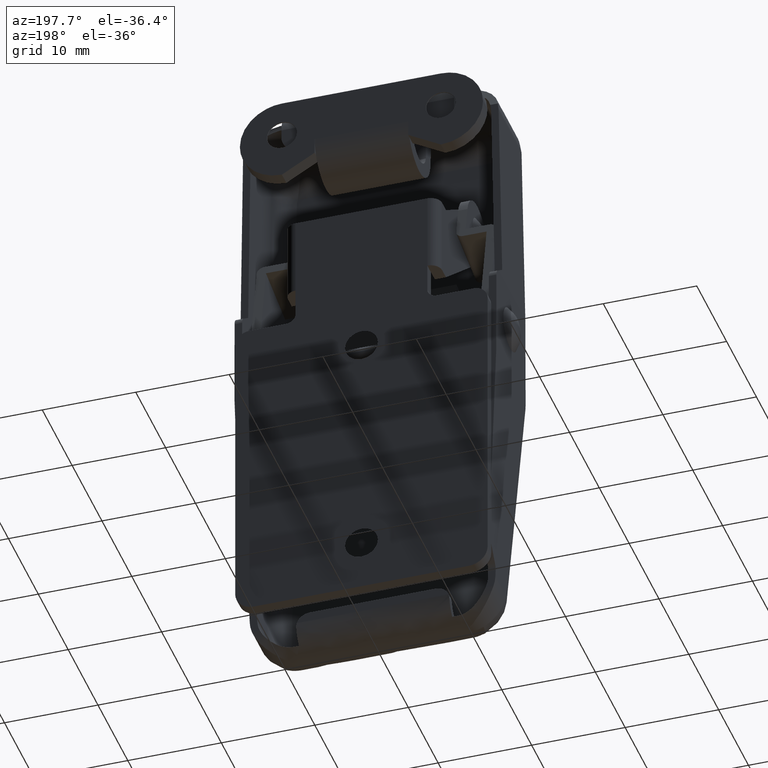
[diagram: clean part render]
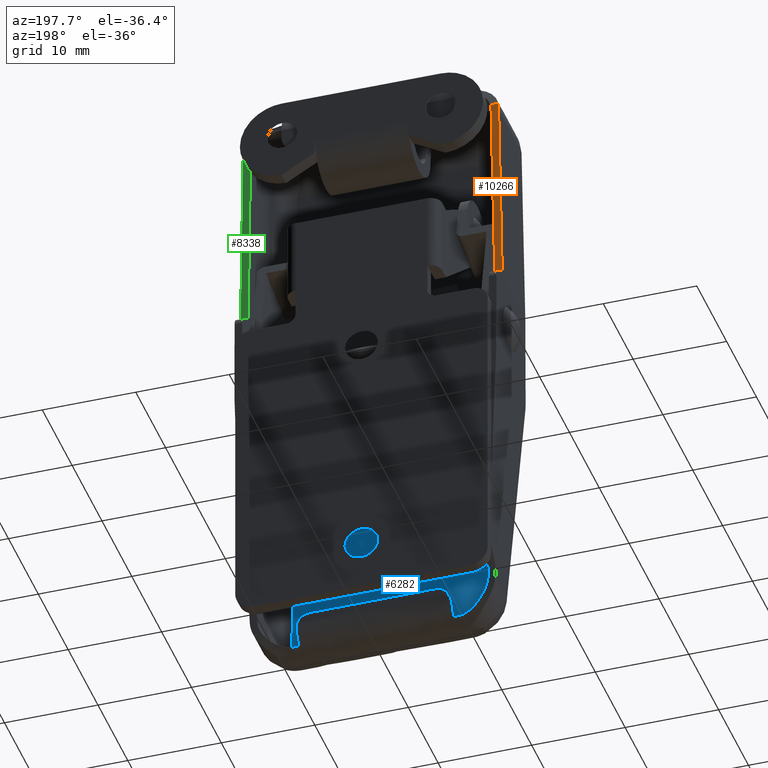
[diagram: same view with three faces highlighted in distinct colors, each labeled with its STEP entity id]
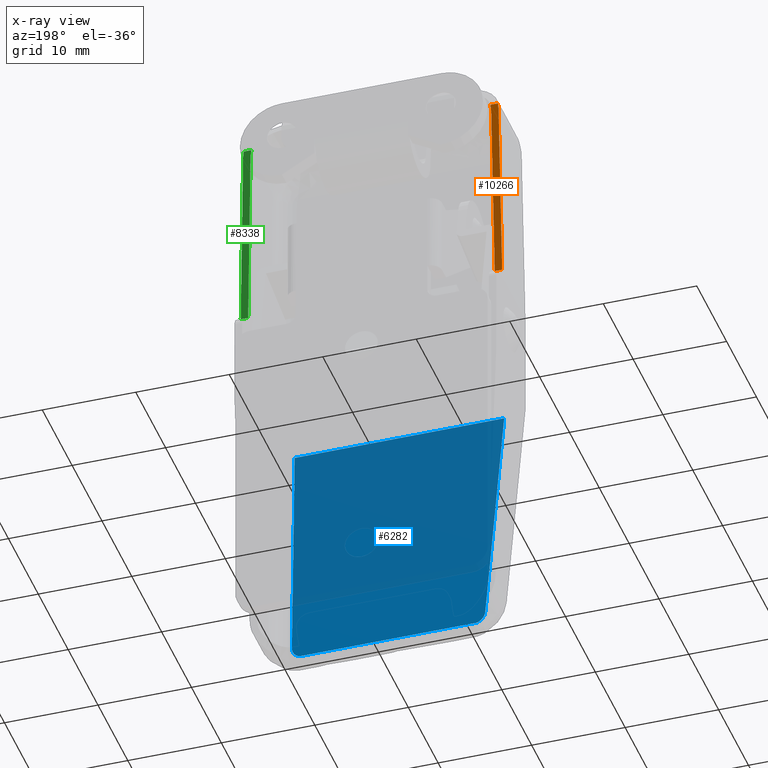
[diagram: x-ray of the same camera — body ghosted, the three highlighted faces saturated]
A machine part, auxiliary view with three faces highlighted in distinct colors.
The next image is the same camera in x-ray (body ghosted, the three faces saturated) — at least one of them is partly hidden behind the body in this view.
Their STEP definitions:

[orange] entity #10266 — the highlighted face is a freeform B-spline surface patch.
#8204=CARTESIAN_POINT('',(-13.984603545498860,2.359530509689675,10.951284338391190));
#8205=VERTEX_POINT('',#8204);
#8214=CARTESIAN_POINT('',(-13.665169160898101,2.561006097252625,31.218045558552909));
#8215=VERTEX_POINT('',#8214);
#8221=CARTESIAN_POINT('',(-13.984603545498860,2.359530509689675,10.951284338391190));
#8222=CARTESIAN_POINT('',(-13.665169160898101,2.561006097252625,31.218045558552909));
#8223=QUASI_UNIFORM_CURVE('',1,(#8221,#8222),.UNSPECIFIED.,.F.,.U.);
#8224=EDGE_CURVE('',#8205,#8215,#8223,.T.);
#8282=CARTESIAN_POINT('',(-13.184504181824041,2.359530509689730,10.951284338391160));
#8283=VERTEX_POINT('',#8282);
#8284=CARTESIAN_POINT('',(-13.984603545498860,2.359530509689675,10.951284338391190));
#8285=CARTESIAN_POINT('',(-13.184504181824041,2.359530509689730,10.951284338391160));
#8286=QUASI_UNIFORM_CURVE('',1,(#8284,#8285),.UNSPECIFIED.,.F.,.U.);
#8287=EDGE_CURVE('',#8205,#8283,#8286,.T.);
#9963=CARTESIAN_POINT('',(-12.865268492596620,2.560880774904560,31.205439177134611));
#9964=VERTEX_POINT('',#9963);
#9965=CARTESIAN_POINT('',(-12.773666100172600,2.568258832854665,31.947610179332159));
#9966=VERTEX_POINT('',#9965);
#9967=CARTESIAN_POINT('',(-12.865268492596620,2.560880774904560,31.205439177134611));
#9968=CARTESIAN_POINT('',(-12.861362397458439,2.563363250832866,31.455155519861432));
#9969=CARTESIAN_POINT('',(-12.830585633644651,2.565841399236617,31.704436549753620));
#9970=CARTESIAN_POINT('',(-12.773666100172600,2.568258832854665,31.947610179332159));
#9971=B_SPLINE_CURVE_WITH_KNOTS('',3,(#9967,#9968,#9969,#9970),.UNSPECIFIED.,.F.,.U.,(4,4),(1.511740E-009,0.749274566783677),.UNSPECIFIED.);
#9972=EDGE_CURVE('',#9964,#9966,#9971,.T.);
#10114=CARTESIAN_POINT('',(-13.184504181824041,2.359530509689730,10.951284338391160));
#10115=CARTESIAN_POINT('',(-12.865268492596620,2.560880774904560,31.205439177134611));
#10116=QUASI_UNIFORM_CURVE('',1,(#10114,#10115),.UNSPECIFIED.,.F.,.U.);
#10117=EDGE_CURVE('',#8283,#9964,#10116,.T.);
#10148=CARTESIAN_POINT('',(-13.591127565386159,2.568258832854665,31.947610179332159));
#10149=VERTEX_POINT('',#10148);
#10163=CARTESIAN_POINT('',(-13.665169160898101,2.561006097252625,31.218045558552909));
#10164=CARTESIAN_POINT('',(-13.661327096581580,2.563438758619578,31.462750972502260));
#10165=CARTESIAN_POINT('',(-13.636521975354830,2.565868090223378,31.707121440077930));
#10166=CARTESIAN_POINT('',(-13.591127565386159,2.568258832854665,31.947610179332159));
#10167=B_SPLINE_CURVE_WITH_KNOTS('',3,(#10163,#10164,#10165,#10166),.UNSPECIFIED.,.F.,.U.,(4,4),(5.995832E-010,0.734243164970244),.UNSPECIFIED.);
#10168=EDGE_CURVE('',#8215,#10149,#10167,.T.);
#10249=CARTESIAN_POINT('',(-14.045089868545880,2.578684812192019,32.996376614392219));
#10250=CARTESIAN_POINT('',(-14.045089868545880,2.349104524753674,9.902517340165769));
#10251=CARTESIAN_POINT('',(-12.713179744645711,2.578684812192019,32.996376614392219));
#10252=CARTESIAN_POINT('',(-12.713179744645711,2.349104524753674,9.902517340165769));
#10253=B_SPLINE_SURFACE_WITH_KNOTS('',1,1,((#10249,#10251),(#10250,#10252)),.UNSPECIFIED.,.F.,.F.,.U.,(2,2),(2,2),(0.0,23.095000395889912),(0.041708334948495,0.958291687403247),.UNSPECIFIED.);
#10254=ORIENTED_EDGE('',*,*,#9972,.F.);
#10255=ORIENTED_EDGE('',*,*,#10117,.F.);
#10256=ORIENTED_EDGE('',*,*,#8287,.F.);
#10257=ORIENTED_EDGE('',*,*,#8224,.T.);
#10258=ORIENTED_EDGE('',*,*,#10168,.T.);
#10259=CARTESIAN_POINT('',(-13.591127565386159,2.568258832854665,31.947610179332159));
#10260=CARTESIAN_POINT('',(-12.773666100172600,2.568258832854665,31.947610179332159));
#10261=QUASI_UNIFORM_CURVE('',1,(#10259,#10260),.UNSPECIFIED.,.F.,.U.);
#10262=EDGE_CURVE('',#10149,#9966,#10261,.T.);
#10263=ORIENTED_EDGE('',*,*,#10262,.T.);
#10264=EDGE_LOOP('',(#10254,#10255,#10256,#10257,#10258,#10263));
#10265=FACE_OUTER_BOUND('',#10264,.T.);
#10266=ADVANCED_FACE('',(#10265),#10253,.F.);

[blue] entity #6282 — the highlighted face is a freeform B-spline surface patch.
#5552=CARTESIAN_POINT('',(11.199999999953899,-7.019870438415290,-0.648557340574969));
#5553=VERTEX_POINT('',#5552);
#5608=CARTESIAN_POINT('',(11.199999999953899,-7.006356493765530,-0.748536962582739));
#5609=VERTEX_POINT('',#5608);
#5623=CARTESIAN_POINT('',(11.199999999953899,-7.006356493765530,-0.748536962582739));
#5624=CARTESIAN_POINT('',(11.199999999953899,-7.019870438415290,-0.648557340574969));
#5625=QUASI_UNIFORM_CURVE('',1,(#5623,#5624),.UNSPECIFIED.,.F.,.U.);
#5626=EDGE_CURVE('',#5609,#5553,#5625,.T.);
#5647=CARTESIAN_POINT('',(10.340449735159799,-3.385987702571110,-27.532952072558089));
#5648=VERTEX_POINT('',#5647);
#5674=CARTESIAN_POINT('',(10.340449735159799,-3.385987702571110,-27.532952072558089));
#5675=CARTESIAN_POINT('',(11.199999999953899,-7.006356493765530,-0.748536962582739));
#5676=QUASI_UNIFORM_CURVE('',1,(#5674,#5675),.UNSPECIFIED.,.F.,.U.);
#5677=EDGE_CURVE('',#5648,#5609,#5676,.T.);
#5776=CARTESIAN_POINT('',(9.540956398594981,-3.213152726429925,-28.811629470767681));
#5777=VERTEX_POINT('',#5776);
#5790=CARTESIAN_POINT('',(9.540956398594981,-3.213152726429925,-28.811629470767681));
#5791=CARTESIAN_POINT('',(10.312472814715814,-3.268150766416971,-28.404739891776028));
#5792=CARTESIAN_POINT('',(10.340449735159799,-3.385987702572784,-27.532952072545701));
#5800=(BOUNDED_CURVE()B_SPLINE_CURVE(2,(#5790,#5791,#5792),.UNSPECIFIED.,.F.,.U.)CURVE()GEOMETRIC_REPRESENTATION_ITEM()QUASI_UNIFORM_CURVE()RATIONAL_B_SPLINE_CURVE((1.0,0.864471226695816,1.0))REPRESENTATION_ITEM(''));
#5801=EDGE_CURVE('',#5777,#5648,#5800,.T.);
#6099=CARTESIAN_POINT('',(-11.200000000046501,-7.019870438415290,-0.648557340574969));
#6100=VERTEX_POINT('',#6099);
#6101=CARTESIAN_POINT('',(11.199999999953899,-7.019870438415290,-0.648557340574969));
#6102=CARTESIAN_POINT('',(-11.200000000046501,-7.019870438415290,-0.648557340574969));
#6103=QUASI_UNIFORM_CURVE('',1,(#6101,#6102),.UNSPECIFIED.,.F.,.U.);
#6104=EDGE_CURVE('',#5553,#6100,#6103,.T.);
#6204=CARTESIAN_POINT('',(-9.540956398641720,-3.213152726430085,-28.811629470767731));
#6205=VERTEX_POINT('',#6204);
#6233=CARTESIAN_POINT('',(-9.540956398641720,-3.213152726430085,-28.811629470767731));
#6234=CARTESIAN_POINT('',(9.540956398594981,-3.213152726429925,-28.811629470767681));
#6235=QUASI_UNIFORM_CURVE('',1,(#6233,#6234),.UNSPECIFIED.,.F.,.U.);
#6236=EDGE_CURVE('',#6205,#5777,#6235,.T.);
#6243=CARTESIAN_POINT('',(-12.318879956630971,-3.023007184094583,-30.218374869085370));
#6244=CARTESIAN_POINT('',(-12.318879956630971,-7.210016082854926,0.758188813135121));
#6245=CARTESIAN_POINT('',(12.318880557353200,-3.023007184094583,-30.218374869085370));
#6246=CARTESIAN_POINT('',(12.318880557353200,-7.210016082854926,0.758188813135121));
#6247=B_SPLINE_SURFACE_WITH_KNOTS('',1,1,((#6243,#6245),(#6244,#6246)),.UNSPECIFIED.,.F.,.F.,.U.,(2,2),(2,2),(0.0,31.258255566761228),(0.0,24.637760513984169),.UNSPECIFIED.);
#6248=ORIENTED_EDGE('',*,*,#5677,.F.);
#6249=ORIENTED_EDGE('',*,*,#5801,.F.);
#6250=ORIENTED_EDGE('',*,*,#6236,.F.);
#6251=CARTESIAN_POINT('',(-10.340449735205860,-3.385987702570765,-27.532952072560629));
#6252=VERTEX_POINT('',#6251);
#6253=CARTESIAN_POINT('',(-10.340449735205860,-3.385987702570765,-27.532952072560629));
#6254=CARTESIAN_POINT('',(-10.312472814746156,-3.268150766415761,-28.404739891784988));
#6255=CARTESIAN_POINT('',(-9.540956398641720,-3.213152726430070,-28.811629470767851));
#6263=(BOUNDED_CURVE()B_SPLINE_CURVE(2,(#6253,#6254,#6255),.UNSPECIFIED.,.F.,.U.)CURVE()GEOMETRIC_REPRESENTATION_ITEM()QUASI_UNIFORM_CURVE()RATIONAL_B_SPLINE_CURVE((1.0,0.864471226700473,1.0))REPRESENTATION_ITEM(''));
#6264=EDGE_CURVE('',#6252,#6205,#6263,.T.);
#6265=ORIENTED_EDGE('',*,*,#6264,.F.);
#6266=CARTESIAN_POINT('',(-11.200000000046060,-7.006356493766610,-0.748536962574768));
#6267=VERTEX_POINT('',#6266);
#6268=CARTESIAN_POINT('',(-11.200000000046060,-7.006356493766610,-0.748536962574768));
#6269=CARTESIAN_POINT('',(-10.340449735205860,-3.385987702570765,-27.532952072560629));
#6270=QUASI_UNIFORM_CURVE('',1,(#6268,#6269),.UNSPECIFIED.,.F.,.U.);
#6271=EDGE_CURVE('',#6267,#6252,#6270,.T.);
#6272=ORIENTED_EDGE('',*,*,#6271,.F.);
#6273=CARTESIAN_POINT('',(-11.200000000046501,-7.019870438415290,-0.648557340574969));
#6274=CARTESIAN_POINT('',(-11.200000000046060,-7.006356493766610,-0.748536962574768));
#6275=QUASI_UNIFORM_CURVE('',1,(#6273,#6274),.UNSPECIFIED.,.F.,.U.);
#6276=EDGE_CURVE('',#6100,#6267,#6275,.T.);
#6277=ORIENTED_EDGE('',*,*,#6276,.F.);
#6278=ORIENTED_EDGE('',*,*,#6104,.F.);
#6279=ORIENTED_EDGE('',*,*,#5626,.F.);
#6280=EDGE_LOOP('',(#6248,#6249,#6250,#6265,#6272,#6277,#6278,#6279));
#6281=FACE_OUTER_BOUND('',#6280,.T.);
#6282=ADVANCED_FACE('',(#6281),#6247,.T.);

[green] entity #8338 — the highlighted face is a freeform B-spline surface patch.
#6332=CARTESIAN_POINT('',(12.865268492608999,2.560880774904390,31.205439177117309));
#6333=VERTEX_POINT('',#6332);
#6339=CARTESIAN_POINT('',(13.184504181735999,2.359530509689730,10.951284338391160));
#6340=VERTEX_POINT('',#6339);
#6341=CARTESIAN_POINT('',(12.865268492608999,2.560880774904390,31.205439177117309));
#6342=CARTESIAN_POINT('',(13.184504181735999,2.359530509689730,10.951284338391160));
#6343=QUASI_UNIFORM_CURVE('',1,(#6341,#6342),.UNSPECIFIED.,.F.,.U.);
#6344=EDGE_CURVE('',#6333,#6340,#6343,.T.);
#8000=CARTESIAN_POINT('',(13.984603545410840,2.359530509689730,10.951284338391190));
#8001=VERTEX_POINT('',#8000);
#8012=CARTESIAN_POINT('',(13.184504181735999,2.359530509689730,10.951284338391160));
#8013=CARTESIAN_POINT('',(13.984603545410840,2.359530509689730,10.951284338391190));
#8014=QUASI_UNIFORM_CURVE('',1,(#8012,#8013),.UNSPECIFIED.,.F.,.U.);
#8015=EDGE_CURVE('',#6340,#8001,#8014,.T.);
#8167=CARTESIAN_POINT('',(13.665169160910580,2.561006097252380,31.218045558531660));
#8168=VERTEX_POINT('',#8167);
#8169=CARTESIAN_POINT('',(13.665169160910580,2.561006097252380,31.218045558531660));
#8170=CARTESIAN_POINT('',(13.984603545410840,2.359530509689730,10.951284338391190));
#8171=QUASI_UNIFORM_CURVE('',1,(#8169,#8170),.UNSPECIFIED.,.F.,.U.);
#8172=EDGE_CURVE('',#8168,#8001,#8171,.T.);
#8305=CARTESIAN_POINT('',(12.713179777142750,2.578684812192019,32.996376614392219));
#8306=CARTESIAN_POINT('',(12.713179777142750,2.349104524753674,9.902517340165769));
#8307=CARTESIAN_POINT('',(14.045089900932730,2.578684812192019,32.996376614392219));
#8308=CARTESIAN_POINT('',(14.045089900932730,2.349104524753674,9.902517340165769));
#8309=B_SPLINE_SURFACE_WITH_KNOTS('',1,1,((#8305,#8307),(#8306,#8308)),.UNSPECIFIED.,.F.,.F.,.U.,(2,2),(2,2),(0.0,23.095000395889912),(0.041708334948495,0.958291687403247),.UNSPECIFIED.);
#8310=ORIENTED_EDGE('',*,*,#8015,.F.);
#8311=ORIENTED_EDGE('',*,*,#6344,.F.);
#8312=CARTESIAN_POINT('',(12.773666100184760,2.568258832854665,31.947610179332159));
#8313=VERTEX_POINT('',#8312);
#8314=CARTESIAN_POINT('',(12.773666100184760,2.568258832854665,31.947610179332159));
#8315=CARTESIAN_POINT('',(12.830586770303730,2.565841403052930,31.704436933636600));
#8316=CARTESIAN_POINT('',(12.861361030748951,2.563363248625473,31.455155297810290));
#8317=CARTESIAN_POINT('',(12.865268492608999,2.560880774904390,31.205439177117309));
#8318=B_SPLINE_CURVE_WITH_KNOTS('',3,(#8314,#8315,#8316,#8317),.UNSPECIFIED.,.F.,.U.,(4,4),(1.511647E-009,0.749274566800973),.UNSPECIFIED.);
#8319=EDGE_CURVE('',#8313,#6333,#8318,.T.);
#8320=ORIENTED_EDGE('',*,*,#8319,.F.);
#8321=CARTESIAN_POINT('',(13.591127565398139,2.568258832854665,31.947610179332159));
#8322=VERTEX_POINT('',#8321);
#8323=CARTESIAN_POINT('',(12.773666100184760,2.568258832854665,31.947610179332159));
#8324=CARTESIAN_POINT('',(13.591127565398139,2.568258832854665,31.947610179332159));
#8325=QUASI_UNIFORM_CURVE('',1,(#8323,#8324),.UNSPECIFIED.,.F.,.U.);
#8326=EDGE_CURVE('',#8313,#8322,#8325,.T.);
#8327=ORIENTED_EDGE('',*,*,#8326,.T.);
#8328=CARTESIAN_POINT('',(13.591127565398139,2.568258832854665,31.947610179332159));
#8329=CARTESIAN_POINT('',(13.636525997361201,2.565868099752930,31.707122398665138));
#8330=CARTESIAN_POINT('',(13.661323131758200,2.563438750586564,31.462750164441331));
#8331=CARTESIAN_POINT('',(13.665169160910580,2.561006097252380,31.218045558531660));
#8332=B_SPLINE_CURVE_WITH_KNOTS('',3,(#8328,#8329,#8330,#8331),.UNSPECIFIED.,.F.,.U.,(4,4),(5.996957E-010,0.734243164991513),.UNSPECIFIED.);
#8333=EDGE_CURVE('',#8322,#8168,#8332,.T.);
#8334=ORIENTED_EDGE('',*,*,#8333,.T.);
#8335=ORIENTED_EDGE('',*,*,#8172,.T.);
#8336=EDGE_LOOP('',(#8310,#8311,#8320,#8327,#8334,#8335));
#8337=FACE_OUTER_BOUND('',#8336,.T.);
#8338=ADVANCED_FACE('',(#8337),#8309,.F.);